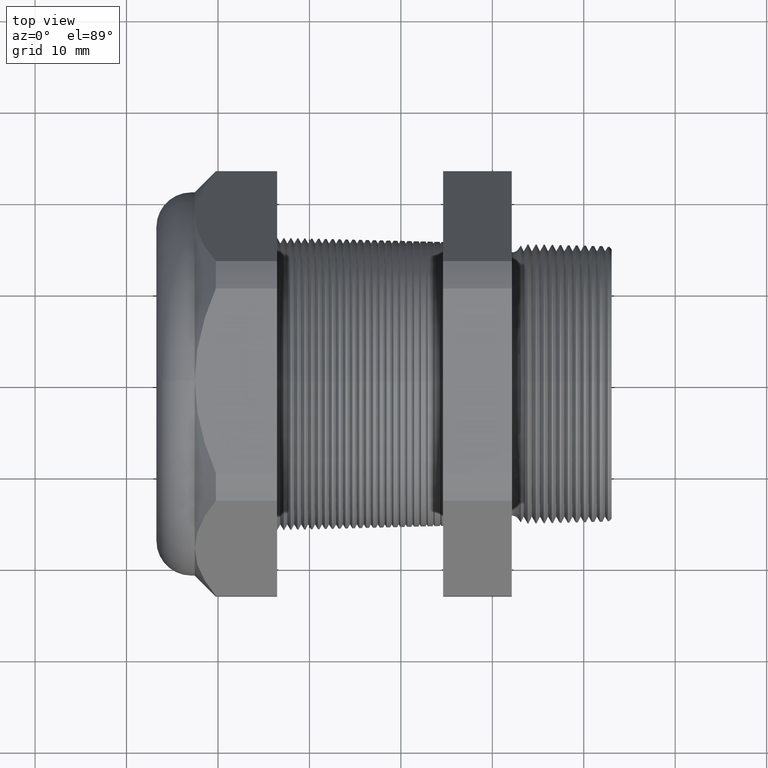
[diagram: clean part render]
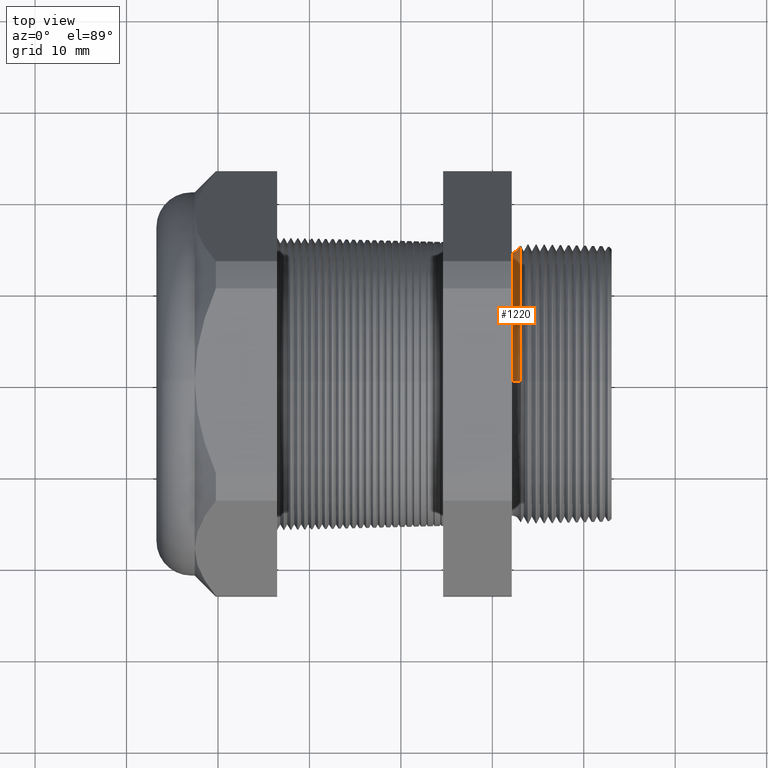
[diagram: same view with one face highlighted and labeled with its STEP entity id]
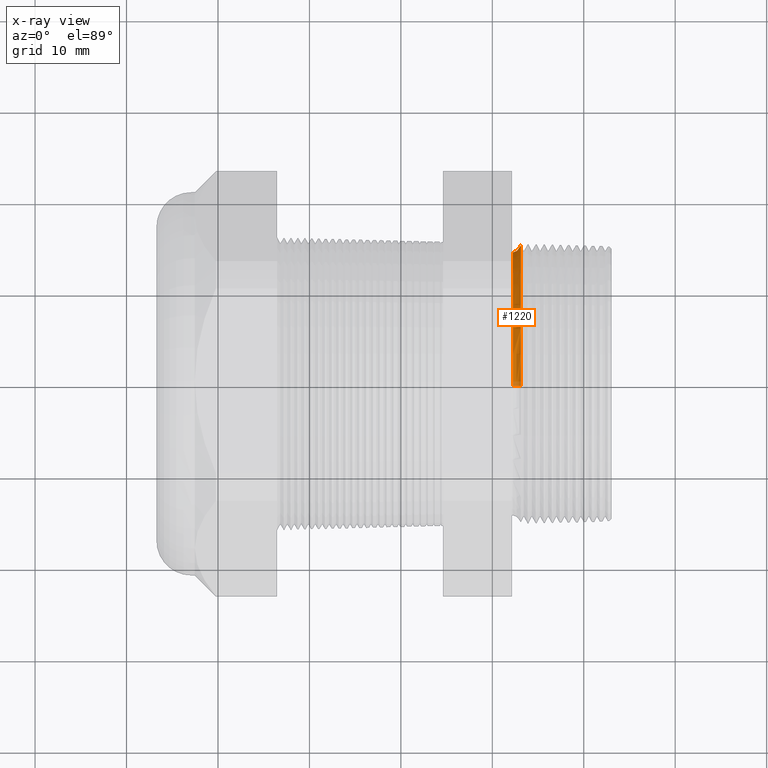
[diagram: x-ray of the same camera — body ghosted, the highlighted face saturated]
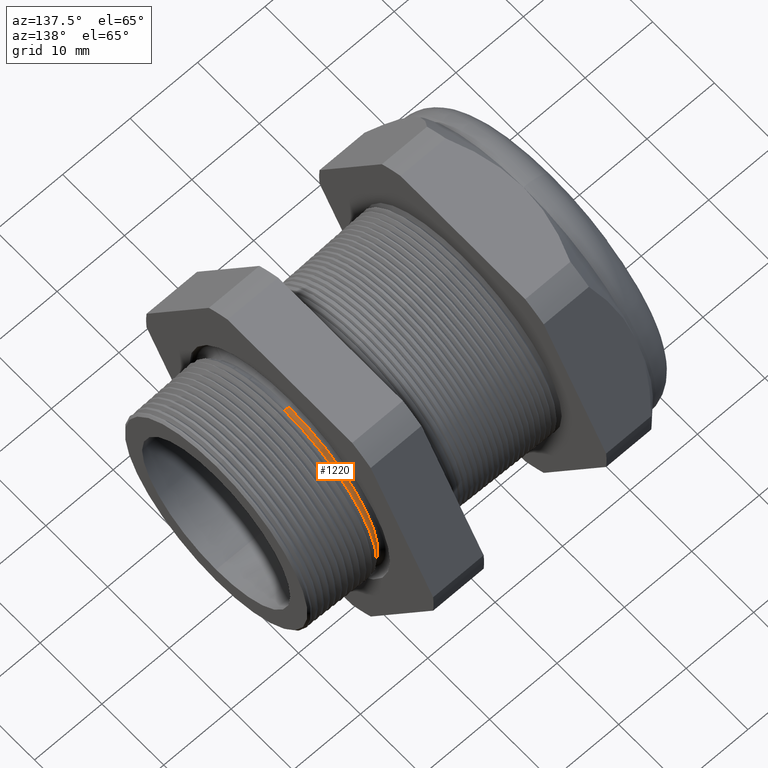
[diagram: same view with one face highlighted and labeled with its STEP entity id]
A machine part, top view. The second image highlights one B-rep face of the part: STEP entity #1220.
The next image is the same camera in x-ray: the body ghosted, the highlighted face saturated — about 3% of this face is hidden behind the body in this view.
A second angle (auxiliary view) of the same face is appended — the face is thin or edge-on in the first view.
In plain terms, the highlighted toroidal blend (fillet) surface has major radius 15.33 mm and minor (blend) radius 0.889 mm.
Its self-contained STEP definition (entity closure, byte-faithful):
#1064 = VERTEX_POINT ( 'NONE', #3040 ) ;
#1081 = ORIENTED_EDGE ( 'NONE', *, *, #1214, .F. ) ;
#1214 = EDGE_CURVE ( 'NONE', #1064, #1225, #3249, .T. ) ;
#1215 = ORIENTED_EDGE ( 'NONE', *, *, #1216, .T. ) ;
#1216 = EDGE_CURVE ( 'NONE', #1222, #1223, #3244, .T. ) ;
#1218 = ORIENTED_EDGE ( 'NONE', *, *, #1224, .T. ) ;
#1220 = ADVANCED_FACE ( 'NONE', ( #3305 ), #3304, .F. ) ;
#1221 = EDGE_LOOP ( 'NONE', ( #1215, #1218, #1081, #1271 ) ) ;
#1222 = VERTEX_POINT ( 'NONE', #3299 ) ;
#1223 = VERTEX_POINT ( 'NONE', #3298 ) ;
#1224 = EDGE_CURVE ( 'NONE', #1223, #1225, #3297, .T. ) ;
#1225 = VERTEX_POINT ( 'NONE', #3292 ) ;
#1258 = EDGE_CURVE ( 'NONE', #1222, #1064, #3361, .T. ) ;
#1271 = ORIENTED_EDGE ( 'NONE', *, *, #1258, .F. ) ;
#3040 = CARTESIAN_POINT ( 'NONE',  ( -0.2708463023710456800, 0.0000000000000000000, 0.5958938123183819000 ) ) ;
#3242 = DIRECTION ( 'NONE',  ( 0.0000000000000000000, -1.000000000000000000, 0.0000000000000000000 ) ) ;
#3243 = AXIS2_PLACEMENT_3D ( 'NONE', #3250, #3242, #3306 ) ;
#3244 = CIRCLE ( 'NONE', #3243, 0.03499999999999996900 ) ;
#3245 = DIRECTION ( 'NONE',  ( 0.0000000000000000000, 1.224646799147354900E-016, 1.000000000000000000 ) ) ;
#3246 = DIRECTION ( 'NONE',  ( 0.0000000000000000000, 1.000000000000000000, -1.224646799147353200E-016 ) ) ;
#3247 = CARTESIAN_POINT ( 'NONE',  ( -0.3049999999999999400, 7.391281930635429700E-017, 0.6035439716807758900 ) ) ;
#3248 = AXIS2_PLACEMENT_3D ( 'NONE', #3247, #3246, #3245 ) ;
#3249 = CIRCLE ( 'NONE', #3248, 0.03499999999999996900 ) ;
#3250 = CARTESIAN_POINT ( 'NONE',  ( -0.3049999999999999400, 0.0000000000000000000, -0.6035439716807758900 ) ) ;
#3292 = CARTESIAN_POINT ( 'NONE',  ( -0.3049999999999999400, 6.962655550933855800E-017, 0.5685439716807759700 ) ) ;
#3293 = DIRECTION ( 'NONE',  ( 0.0000000000000000000, 0.0000000000000000000, -1.000000000000000000 ) ) ;
#3294 = DIRECTION ( 'NONE',  ( 1.000000000000000000, 0.0000000000000000000, 0.0000000000000000000 ) ) ;
#3295 = CARTESIAN_POINT ( 'NONE',  ( -0.3049999999999999400, 0.0000000000000000000, 0.0000000000000000000 ) ) ;
#3296 = AXIS2_PLACEMENT_3D ( 'NONE', #3295, #3294, #3293 ) ;
#3297 = CIRCLE ( 'NONE', #3296, 0.5685439716807759700 ) ;
#3298 = CARTESIAN_POINT ( 'NONE',  ( -0.3049999999999999400, 0.0000000000000000000, -0.5685439716807759700 ) ) ;
#3299 = CARTESIAN_POINT ( 'NONE',  ( -0.2708463023710456800, 7.297594498874198900E-017, -0.5958938123183819000 ) ) ;
#3300 = DIRECTION ( 'NONE',  ( 0.0000000000000000000, 0.0000000000000000000, -1.000000000000000000 ) ) ;
#3301 = DIRECTION ( 'NONE',  ( 1.000000000000000000, 0.0000000000000000000, 0.0000000000000000000 ) ) ;
#3302 = CARTESIAN_POINT ( 'NONE',  ( -0.3049999999999999400, 0.0000000000000000000, 0.0000000000000000000 ) ) ;
#3303 = AXIS2_PLACEMENT_3D ( 'NONE', #3302, #3301, #3300 ) ;
#3304 = TOROIDAL_SURFACE ( 'NONE', #3303, 0.6035439716807758900, 0.03499999999999994800 ) ;
#3305 = FACE_OUTER_BOUND ( 'NONE', #1221, .T. ) ;
#3306 = DIRECTION ( 'NONE',  ( 0.0000000000000000000, 0.0000000000000000000, -1.000000000000000000 ) ) ;
#3357 = DIRECTION ( 'NONE',  ( 0.0000000000000000000, 0.0000000000000000000, 1.000000000000000000 ) ) ;
#3358 = DIRECTION ( 'NONE',  ( 1.000000000000000000, 0.0000000000000000000, 0.0000000000000000000 ) ) ;
#3359 = CARTESIAN_POINT ( 'NONE',  ( -0.2708463023710456800, 0.0000000000000000000, 0.0000000000000000000 ) ) ;
#3360 = AXIS2_PLACEMENT_3D ( 'NONE', #3359, #3358, #3357 ) ;
#3361 = CIRCLE ( 'NONE', #3360, 0.5958938123183819000 ) ;